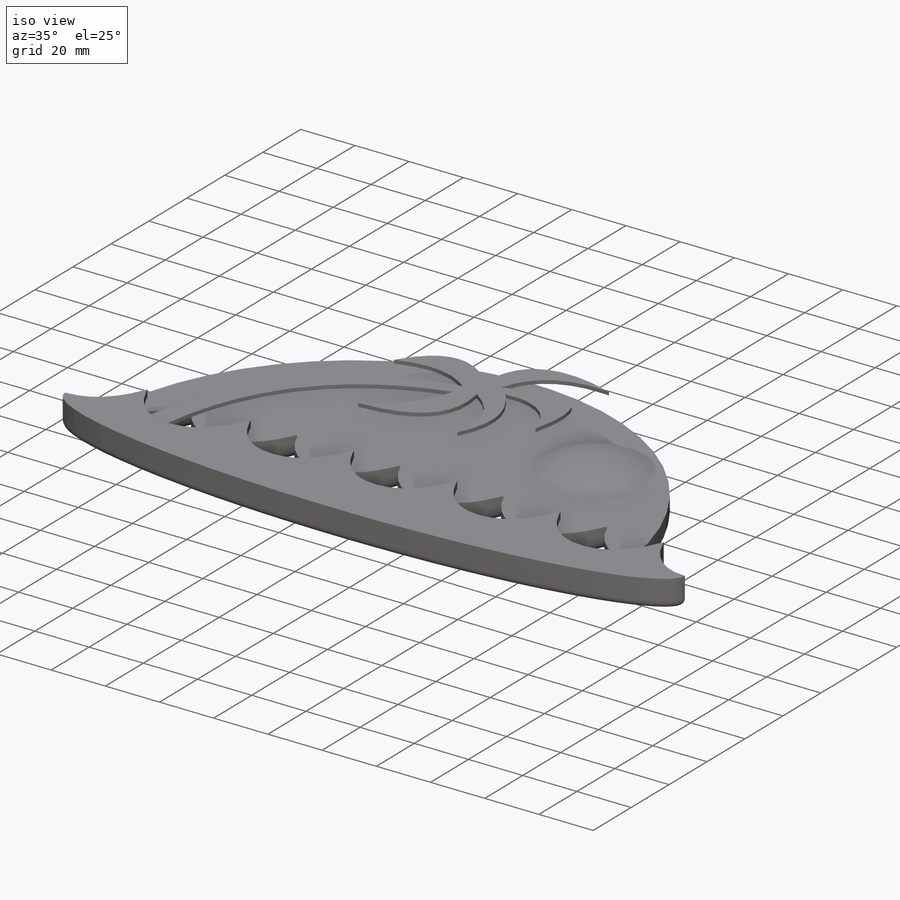
[diagram: iso view]
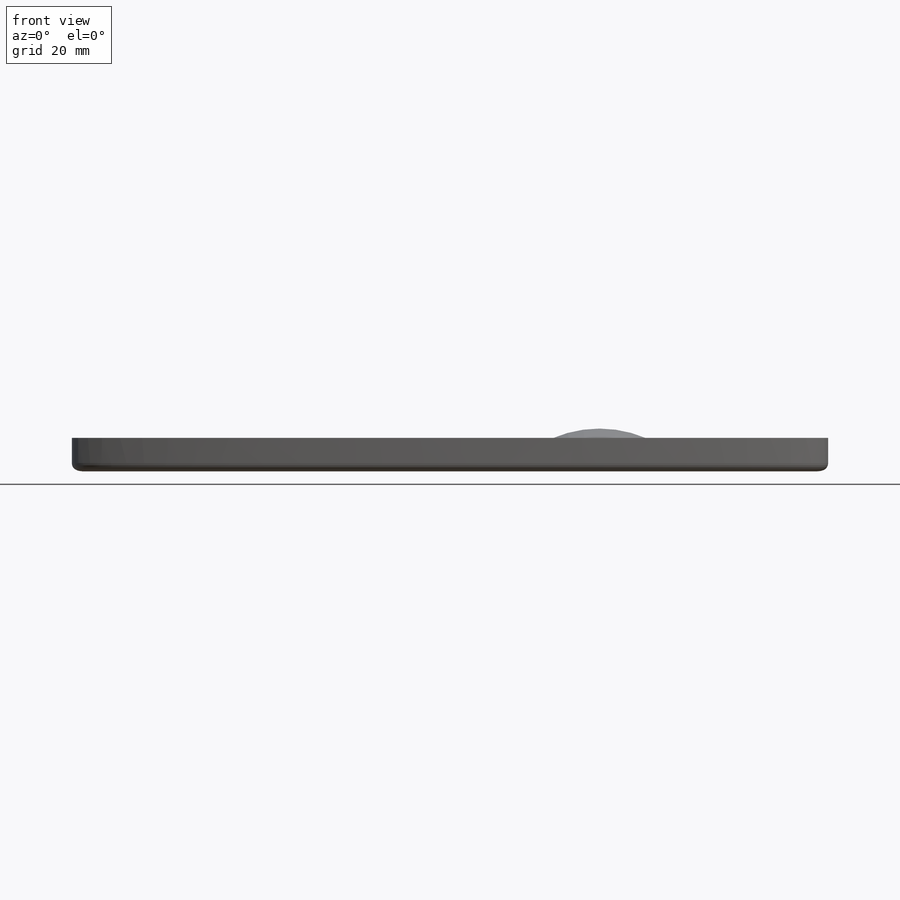
[diagram: front view]
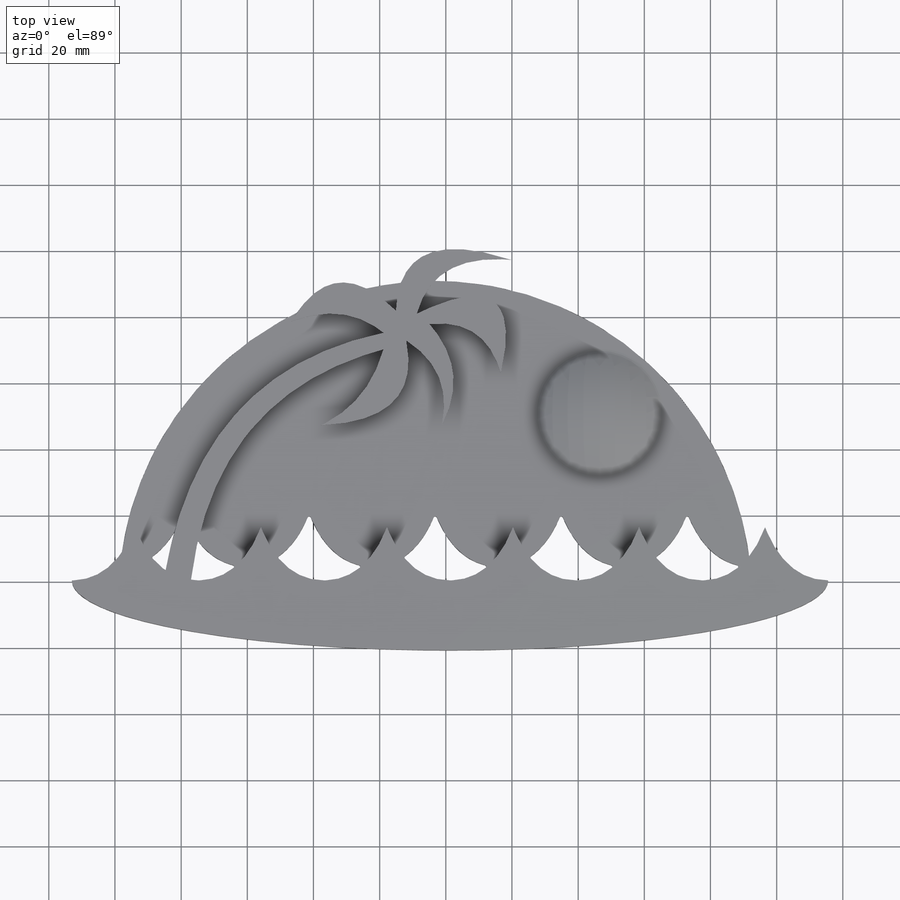
[diagram: top view]
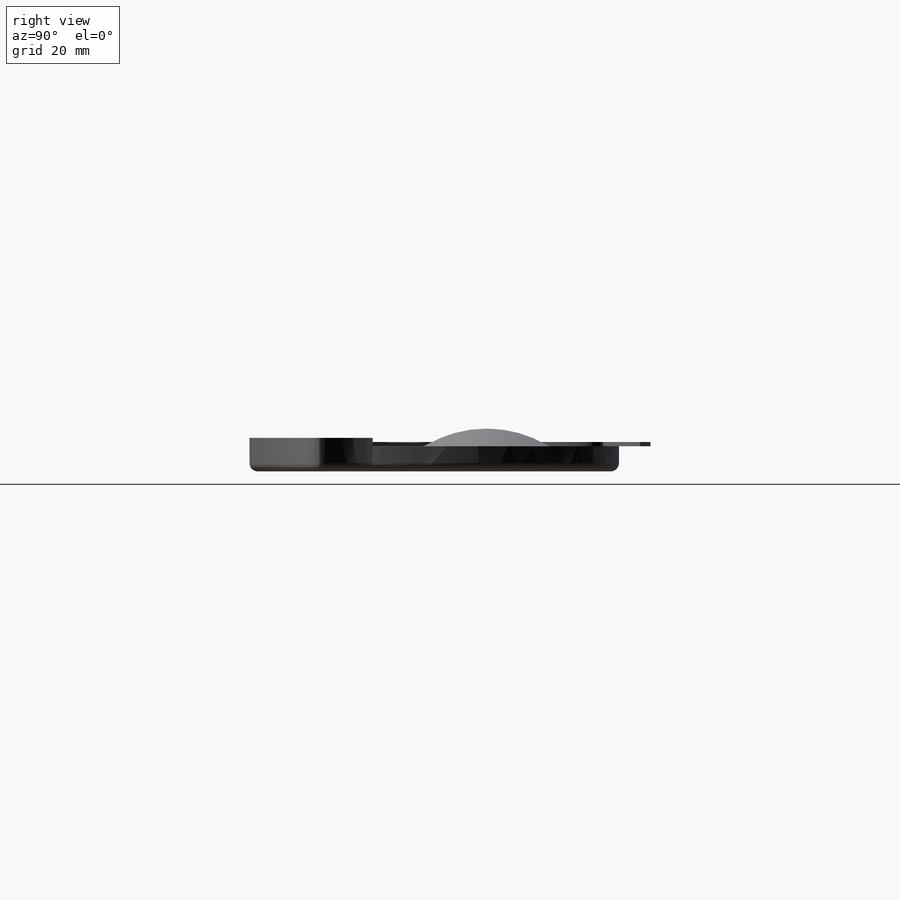
[diagram: right view]
SOLIDWORKS PART (.sldprt)
format: sldprt  version: not decoded by parser v0  size: 569,856 bytes
history: native  units: mm
features: sketch x4, extrude x4, fillet x2, material x1, dome x1 (+13 scaffold rows collapsed)
feature tree (25):
  scaffold x13  (default folders/planes/origin — collapsed)
  material  "Material <not specified>"
  sketch  "Sketch1"  dims[D1=38.1mm D2=25.4mm]
  extrude  "Boss-Extrude1"  Depth=7.62mm
  sketch  "Sketch2"  dims[D1=114.3mm]
  extrude  "Boss-Extrude2"  Depth=2.54mm
  sketch  "Sketch3"
  extrude  "Boss-Extrude3"  Depth=1.27mm
  sketch  "Sketch4"
  extrude  "Boss-Extrude4"  Depth=0.254mm
  dome  "Dome1"
  fillet  "Fillet1"  Radius=2.54mm
  fillet  "Fillet2"  Radius=0.508mm
decode coverage: 8 of 11 modeling features carry decoded parameters
note: suppression state not decoded; provenance and decode notes live in map.json
